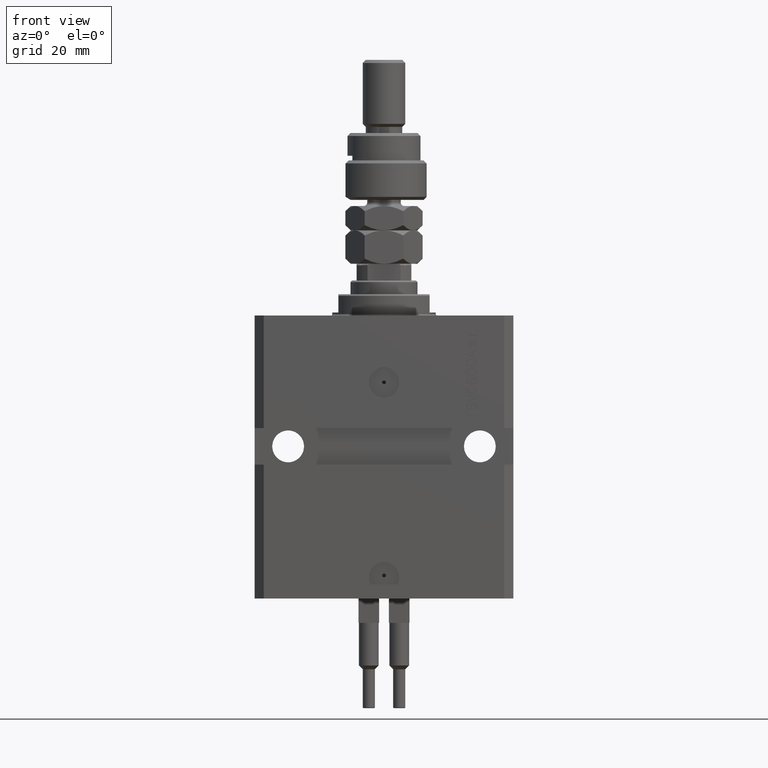
[diagram: clean part render]
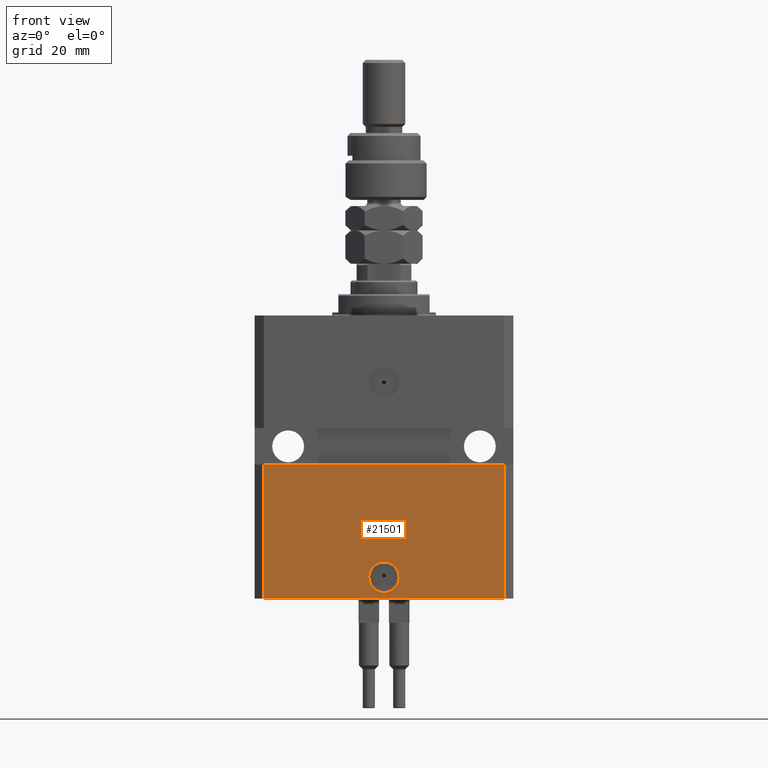
[diagram: same view with one face highlighted and labeled with its STEP entity id]
A machine part, front view. The second image highlights one B-rep face of the part: STEP entity #21501.
In plain terms, the highlighted planar face has unit normal (0, -1, 0).
Its self-contained STEP definition (entity closure, byte-faithful):
#1087 = VECTOR ( 'NONE', #14833, 1000.000000000000000 ) ;
#3124 = DIRECTION ( 'NONE',  ( 1.000000000000000000, 1.632680918566406300E-16, 0.000000000000000000 ) ) ;
#4311 = VERTEX_POINT ( 'NONE', #45535 ) ;
#5818 = LINE ( 'NONE', #9444, #27612 ) ;
#5992 = VERTEX_POINT ( 'NONE', #13597 ) ;
#7267 = LINE ( 'NONE', #38578, #19532 ) ;
#7866 = EDGE_CURVE ( 'NONE', #4311, #16459, #49789, .T. ) ;
#9444 = CARTESIAN_POINT ( 'NONE',  ( -39.50000000000000711, -31.50000000000000000, -93.00000000000000000 ) ) ;
#10268 = DIRECTION ( 'NONE',  ( 1.176083712526788232E-16, -1.000000000000000000, 0.000000000000000000 ) ) ;
#10525 = CARTESIAN_POINT ( 'NONE',  ( 0.000000000000000000, -31.50000000000000000, -86.00000000000000000 ) ) ;
#11601 = EDGE_CURVE ( 'NONE', #19453, #26849, #24955, .T. ) ;
#13344 = EDGE_LOOP ( 'NONE', ( #44827, #25214 ) ) ;
#13597 = CARTESIAN_POINT ( 'NONE',  ( 39.50000000000001421, -31.49999999999999289, -48.99999999999999289 ) ) ;
#13719 = DIRECTION ( 'NONE',  ( 0.000000000000000000, -0.000000000000000000, -1.000000000000000000 ) ) ;
#14248 = EDGE_CURVE ( 'NONE', #16459, #5992, #50049, .T. ) ;
#14330 = DIRECTION ( 'NONE',  ( 1.000000000000000000, 0.000000000000000000, 0.000000000000000000 ) ) ;
#14833 = DIRECTION ( 'NONE',  ( 0.000000000000000000, 0.000000000000000000, 1.000000000000000000 ) ) ;
#15057 = AXIS2_PLACEMENT_3D ( 'NONE', #28989, #29518, #21750 ) ;
#16459 = VERTEX_POINT ( 'NONE', #17999 ) ;
#17999 = CARTESIAN_POINT ( 'NONE',  ( 39.50000000000000711, -31.50000000000000000, -93.00000000000000000 ) ) ;
#18503 = CIRCLE ( 'NONE', #28424, 5.000000000000006217 ) ;
#19453 = VERTEX_POINT ( 'NONE', #41333 ) ;
#19532 = VECTOR ( 'NONE', #3124, 1000.000000000000000 ) ;
#19612 = EDGE_CURVE ( 'NONE', #4311, #39936, #5818, .T. ) ;
#20838 = ORIENTED_EDGE ( 'NONE', *, *, #19612, .F. ) ;
#21489 = CARTESIAN_POINT ( 'NONE',  ( -39.50000000000000711, -31.50000000000000000, -93.00000000000000000 ) ) ;
#21501 = ADVANCED_FACE ( 'NONE', ( #41401, #44752 ), #41152, .T. ) ;
#21750 = DIRECTION ( 'NONE',  ( 1.000000000000000000, 0.000000000000000000, 0.000000000000000000 ) ) ;
#24955 = CIRCLE ( 'NONE', #15057, 5.000000000000006217 ) ;
#25214 = ORIENTED_EDGE ( 'NONE', *, *, #38656, .F. ) ;
#26720 = CARTESIAN_POINT ( 'NONE',  ( -5.000000000000006217, -31.50000000000000000, -86.00000000000000000 ) ) ;
#26849 = VERTEX_POINT ( 'NONE', #26720 ) ;
#27612 = VECTOR ( 'NONE', #37391, 1000.000000000000000 ) ;
#28424 = AXIS2_PLACEMENT_3D ( 'NONE', #10525, #10268, #41320 ) ;
#28989 = CARTESIAN_POINT ( 'NONE',  ( 0.000000000000000000, -31.50000000000000000, -86.00000000000000000 ) ) ;
#29518 = DIRECTION ( 'NONE',  ( 1.176083712526788232E-16, -1.000000000000000000, 0.000000000000000000 ) ) ;
#34331 = AXIS2_PLACEMENT_3D ( 'NONE', #21489, #49177, #13719 ) ;
#37391 = DIRECTION ( 'NONE',  ( 0.000000000000000000, 0.000000000000000000, 1.000000000000000000 ) ) ;
#37904 = ORIENTED_EDGE ( 'NONE', *, *, #43160, .F. ) ;
#38578 = CARTESIAN_POINT ( 'NONE',  ( -42.50000000000000000, -31.50000000000000711, -48.99999999999999289 ) ) ;
#38637 = CARTESIAN_POINT ( 'NONE',  ( 39.50000000000000711, -31.50000000000000000, -93.00000000000000000 ) ) ;
#38656 = EDGE_CURVE ( 'NONE', #26849, #19453, #18503, .T. ) ;
#39936 = VERTEX_POINT ( 'NONE', #47439 ) ;
#40733 = ORIENTED_EDGE ( 'NONE', *, *, #7866, .T. ) ;
#41152 = PLANE ( 'NONE',  #34331 ) ;
#41248 = CARTESIAN_POINT ( 'NONE',  ( -39.50000000000000711, -31.50000000000000000, -93.00000000000000000 ) ) ;
#41320 = DIRECTION ( 'NONE',  ( 1.000000000000000000, 0.000000000000000000, 0.000000000000000000 ) ) ;
#41333 = CARTESIAN_POINT ( 'NONE',  ( 5.000000000000006217, -31.50000000000000000, -86.00000000000000000 ) ) ;
#41401 = FACE_BOUND ( 'NONE', #13344, .T. ) ;
#42940 = EDGE_LOOP ( 'NONE', ( #37904, #20838, #40733, #43251 ) ) ;
#43160 = EDGE_CURVE ( 'NONE', #39936, #5992, #7267, .T. ) ;
#43251 = ORIENTED_EDGE ( 'NONE', *, *, #14248, .T. ) ;
#44752 = FACE_OUTER_BOUND ( 'NONE', #42940, .T. ) ;
#44827 = ORIENTED_EDGE ( 'NONE', *, *, #11601, .F. ) ;
#45535 = CARTESIAN_POINT ( 'NONE',  ( -39.50000000000000711, -31.50000000000000000, -93.00000000000000000 ) ) ;
#46314 = VECTOR ( 'NONE', #14330, 1000.000000000000000 ) ;
#47439 = CARTESIAN_POINT ( 'NONE',  ( -39.50000000000000000, -31.50000000000000711, -48.99999999999999289 ) ) ;
#49177 = DIRECTION ( 'NONE',  ( 0.000000000000000000, -1.000000000000000000, 0.000000000000000000 ) ) ;
#49789 = LINE ( 'NONE', #41248, #46314 ) ;
#50049 = LINE ( 'NONE', #38637, #1087 ) ;